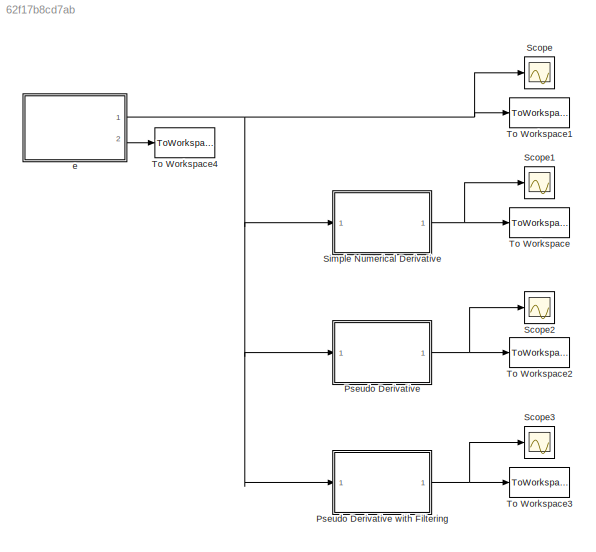
MODEL slx_62f17b8cd7ab
KIND model
CONFIG AbsTol = auto
CONFIG EnableMultiTasking = on
CONFIG FixedStep = T
CONFIG MaxStep = auto
CONFIG MinStep = auto
CONFIG RelTol = 1e-3
CONFIG SampleTimeConstraint = Unconstrained
CONFIG Solver = ode3
CONFIG SolverName = ode3
CONFIG StartTime = 0.0
CONFIG StopTime = t_final
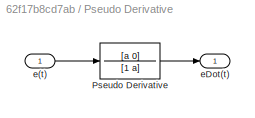
BLOCK [SubSystem] Pseudo Derivative
  Ports = [1, 1]
  RequestExecContextInheritance = off
  Variant = off
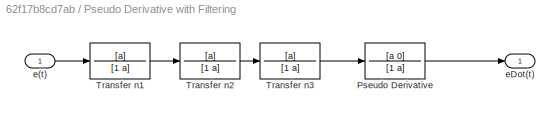
BLOCK [SubSystem] Pseudo Derivative with Filtering
  Ports = [1, 1]
  RequestExecContextInheritance = off
  Variant = off
BLOCK [TransferFcn] Pseudo Derivative with Filtering/Pseudo Derivative
  Denominator = [1 a]
  Numerator = [a 0]
BLOCK [TransferFcn] Pseudo Derivative with Filtering/Transfer n1
  Denominator = [1 a]
  Numerator = [a]
BLOCK [TransferFcn] Pseudo Derivative with Filtering/Transfer n2
  Denominator = [1 a]
  Numerator = [a]
BLOCK [TransferFcn] Pseudo Derivative with Filtering/Transfer n3
  Denominator = [1 a]
  Numerator = [a]
BLOCK [Inport] Pseudo Derivative with Filtering/e(t)
  IconDisplay = Port number
BLOCK [Outport] Pseudo Derivative with Filtering/eDot(t)
  IconDisplay = Port number
BLOCK [TransferFcn] Pseudo Derivative/Pseudo Derivative
  Denominator = [1 a]
  Numerator = [a 0]
BLOCK [Inport] Pseudo Derivative/e(t)
  IconDisplay = Port number
BLOCK [Outport] Pseudo Derivative/eDot(t)
  IconDisplay = Port number
BLOCK [Scope] Scope
  NumInputPorts = 1
  Ports = [1]
  ScopeSpecificationString = Simulink.scopes.TimeScopeBlockCfg('CurrentConfiguration', extmgr.ConfigurationSet(extmgr.Configuration('Core','General UI',true),extmgr.Configuration('Core','Source UI',true),extmgr.Configuration('Sources','WiredSimulink',true,'DataLoggingSaveFormat','StructureWithTime','DataLoggingDecimation','1','DataLoggingDecimateData',true),extmgr.Configuration('Visuals','Time Domain',true,'SerializedDisplays...<+1626ch>
BLOCK [Scope] Scope1
  NumInputPorts = 1
  Ports = [1]
  ScopeSpecificationString = Simulink.scopes.TimeScopeBlockCfg('CurrentConfiguration', extmgr.ConfigurationSet(extmgr.Configuration('Core','General UI',true),extmgr.Configuration('Core','Source UI',true),extmgr.Configuration('Sources','WiredSimulink',true,'DataLoggingVariableName','ScopeData1','DataLoggingSaveFormat','StructureWithTime','DataLoggingDecimation','1','DataLoggingDecimateData',true),extmgr.Configuration('Visuals'...<+1671ch>
BLOCK [Scope] Scope2
  NumInputPorts = 1
  Ports = [1]
  ScopeSpecificationString = Simulink.scopes.TimeScopeBlockCfg('CurrentConfiguration', extmgr.ConfigurationSet(extmgr.Configuration('Core','General UI',true),extmgr.Configuration('Core','Source UI',true),extmgr.Configuration('Sources','WiredSimulink',true,'DataLoggingVariableName','ScopeData2','DataLoggingSaveFormat','StructureWithTime','DataLoggingDecimation','1','DataLoggingDecimateData',true),extmgr.Configuration('Visuals'...<+1671ch>
BLOCK [Scope] Scope3
  NumInputPorts = 1
  Ports = [1]
  ScopeSpecificationString = Simulink.scopes.TimeScopeBlockCfg('CurrentConfiguration', extmgr.ConfigurationSet(extmgr.Configuration('Core','General UI',true),extmgr.Configuration('Core','Source UI',true),extmgr.Configuration('Sources','WiredSimulink',true,'DataLoggingVariableName','ScopeData3','DataLoggingSaveFormat','StructureWithTime','DataLoggingDecimation','1','DataLoggingDecimateData',true),extmgr.Configuration('Visuals'...<+1645ch>
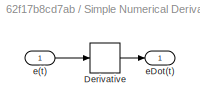
BLOCK [SubSystem] Simple Numerical Derivative
  Ports = [1, 1]
  RequestExecContextInheritance = off
  Variant = off
BLOCK [Derivative] Simple Numerical Derivative/Derivative
BLOCK [Inport] Simple Numerical Derivative/e(t)
  IconDisplay = Port number
BLOCK [Outport] Simple Numerical Derivative/eDot(t)
  IconDisplay = Port number
BLOCK [ToWorkspace] To Workspace
  MaxDataPoints = inf
  Ports = [1]
  SampleTime = -1
  SaveFormat = Structure With Time
  VariableName = sim_eDot1
BLOCK [ToWorkspace] To Workspace1
  MaxDataPoints = inf
  Ports = [1]
  SampleTime = -1
  SaveFormat = Structure With Time
  VariableName = sim_e
BLOCK [ToWorkspace] To Workspace2
  MaxDataPoints = inf
  Ports = [1]
  SampleTime = -1
  SaveFormat = Structure With Time
  VariableName = sim_eDot2
BLOCK [ToWorkspace] To Workspace3
  MaxDataPoints = inf
  Ports = [1]
  SampleTime = -1
  SaveFormat = Structure With Time
  VariableName = sim_eDot3
BLOCK [ToWorkspace] To Workspace4
  MaxDataPoints = inf
  Ports = [1]
  SampleTime = -1
  SaveFormat = Structure With Time
  VariableName = sim_eDot
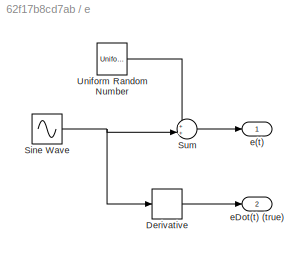
BLOCK [SubSystem] e
  Ports = [0, 2]
  RequestExecContextInheritance = off
  Variant = off
BLOCK [Derivative] e/Derivative
BLOCK [Sin] e/Sine Wave
  Frequency = w_e
  Ports = [0, 1]
  SampleTime = 0
BLOCK [Sum] e/Sum
  IconShape = round
  InputSameDT = off
  Inputs = ++|
  OutDataTypeStr = Inherit: Inherit via internal rule
  Ports = [2, 1]
  SaturateOnIntegerOverflow = off
BLOCK [UniformRandomNumber] e/Uniform Random Number
  Maximum = noise_amplitude
  Minimum = -noise_amplitude
  SampleTime = T
BLOCK [Outport] e/e(t)
  IconDisplay = Port number
BLOCK [Outport] e/eDot(t) (true)
  IconDisplay = Port number
  Port = 2
LINE Pseudo Derivative with Filtering/Pseudo Derivative:1 -> Pseudo Derivative with Filtering/eDot(t):1
LINE Pseudo Derivative with Filtering/Transfer n1:1 -> Pseudo Derivative with Filtering/Transfer n2:1
LINE Pseudo Derivative with Filtering/Transfer n2:1 -> Pseudo Derivative with Filtering/Transfer n3:1
LINE Pseudo Derivative with Filtering/Transfer n3:1 -> Pseudo Derivative with Filtering/Pseudo Derivative:1
LINE Pseudo Derivative with Filtering/e(t):1 -> Pseudo Derivative with Filtering/Transfer n1:1
NET Pseudo Derivative with Filtering:1 -> Scope3:1, To Workspace3:1
LINE Pseudo Derivative/Pseudo Derivative:1 -> Pseudo Derivative/eDot(t):1
LINE Pseudo Derivative/e(t):1 -> Pseudo Derivative/Pseudo Derivative:1
NET Pseudo Derivative:1 -> Scope2:1, To Workspace2:1
LINE Simple Numerical Derivative/Derivative:1 -> Simple Numerical Derivative/eDot(t):1
LINE Simple Numerical Derivative/e(t):1 -> Simple Numerical Derivative/Derivative:1
NET Simple Numerical Derivative:1 -> Scope1:1, To Workspace:1
LINE e/Derivative:1 -> e/eDot(t) (true):1
NET e/Sine Wave:1 -> e/Derivative:1, e/Sum:2
LINE e/Sum:1 -> e/e(t):1
LINE e/Uniform Random Number:1 -> e/Sum:1
NET e:1 -> Pseudo Derivative with Filtering:1, Pseudo Derivative:1, Scope:1, Simple Numerical Derivative:1, To Workspace1:1
LINE e:2 -> To Workspace4:1
note: NET lines group one-source signal fan-out (src -> all destinations, sorted); 1:1 wires keep LINE
